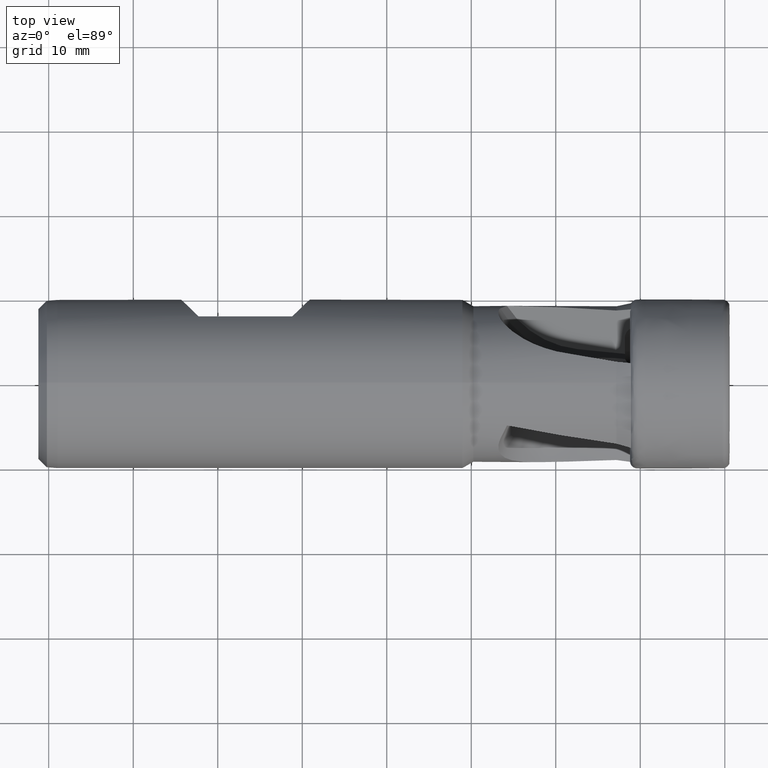
[diagram: clean part render]
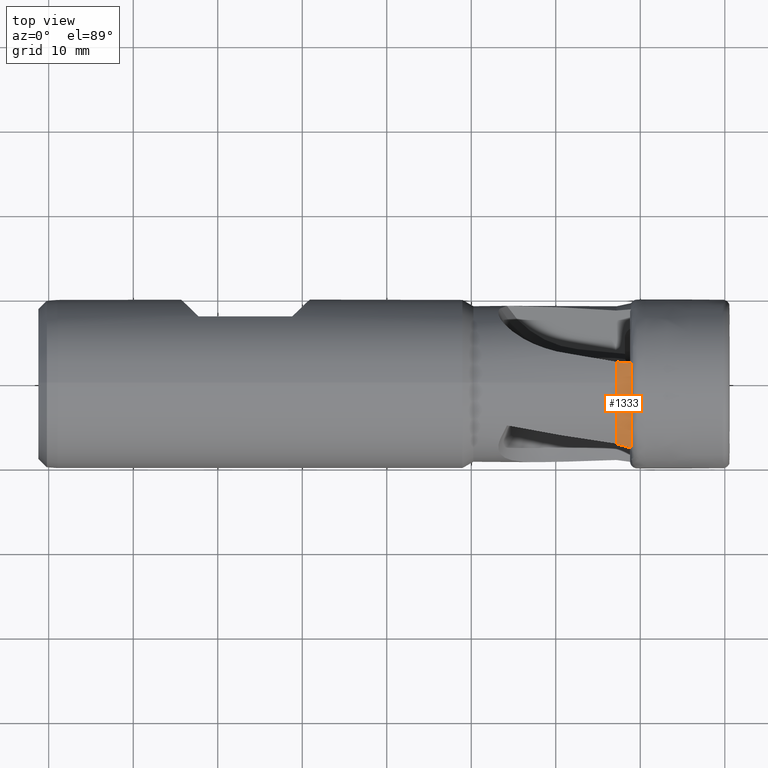
[diagram: same view with one face highlighted and labeled with its STEP entity id]
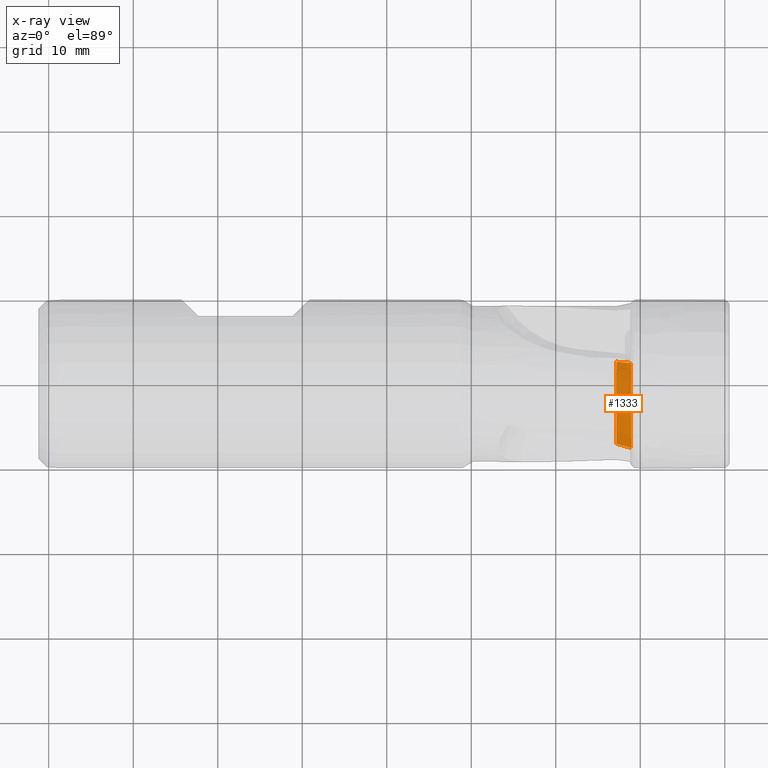
[diagram: x-ray of the same camera — body ghosted, the highlighted face saturated]
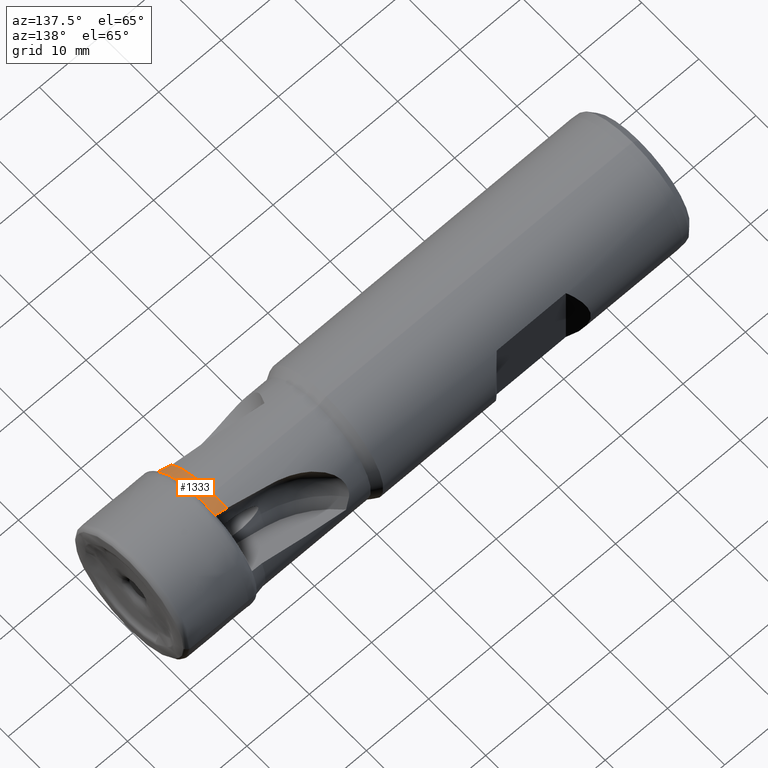
[diagram: same view with one face highlighted and labeled with its STEP entity id]
A machine part, top view. The second image highlights one B-rep face of the part: STEP entity #1333.
The next image is the same camera in x-ray: the body ghosted, the highlighted face saturated — about 0% of this face is hidden behind the body in this view.
A second angle (auxiliary view) of the same face is appended — the face is thin or edge-on in the first view.
In plain terms, the highlighted conical surface has half-angle 10 deg.
Its self-contained STEP definition (entity closure, byte-faithful):
#70 = CIRCLE ( 'NONE', #1669, 9.556150372036091400 ) ;
#119 = VERTEX_POINT ( 'NONE', #2236 ) ;
#124 = VERTEX_POINT ( 'NONE', #2232 ) ;
#135 = VERTEX_POINT ( 'NONE', #2222 ) ;
#143 = VERTEX_POINT ( 'NONE', #2216 ) ;
#365 = ORIENTED_EDGE ( 'NONE', *, *, #1216, .F. ) ;
#396 = ORIENTED_EDGE ( 'NONE', *, *, #3143, .F. ) ;
#412 = ORIENTED_EDGE ( 'NONE', *, *, #3144, .F. ) ;
#432 = ORIENTED_EDGE ( 'NONE', *, *, #1653, .T. ) ;
#437 = VERTEX_POINT ( 'NONE', #2053 ) ;
#449 = ORIENTED_EDGE ( 'NONE', *, *, #3131, .T. ) ;
#1216 = EDGE_CURVE ( 'NONE', #124, #119, #70, .T. ) ;
#1333 = ADVANCED_FACE ( 'NONE', ( #5056 ), #5053, .T. ) ;
#1653 = EDGE_CURVE ( 'NONE', #437, #143, #5007, .T. ) ;
#1669 = AXIS2_PLACEMENT_3D ( 'NONE', #4596, #4595, #4594 ) ;
#1749 = AXIS2_PLACEMENT_3D ( 'NONE', #4647, #4648, #4650 ) ;
#1773 = AXIS2_PLACEMENT_3D ( 'NONE', #2762, #2763, #2764 ) ;
#1785 = AXIS2_PLACEMENT_3D ( 'NONE', #3646, #3647, #3648 ) ;
#2053 = CARTESIAN_POINT ( 'NONE',  ( -12.83564090980890700, 2.466131658906649500, 8.915194593554289800 ) ) ;
#2216 = CARTESIAN_POINT ( 'NONE',  ( -12.83564090980896000, 1.132798289211301900E-015, 9.250000000000001800 ) ) ;
#2222 = CARTESIAN_POINT ( 'NONE',  ( -12.83564090980896000, -7.182680758268091400, 5.828515859531067100 ) ) ;
#2232 = CARTESIAN_POINT ( 'NONE',  ( -11.09937587078961100, 2.304786238743299800, 9.274048216757258000 ) ) ;
#2236 = CARTESIAN_POINT ( 'NONE',  ( -11.09937587081609700, -7.674786269914133800, 5.693651345485011300 ) ) ;
#2762 = CARTESIAN_POINT ( 'NONE',  ( -12.83564090980896000, 0.0000000000000000000, 0.0000000000000000000 ) ) ;
#2763 = DIRECTION ( 'NONE',  ( 1.000000000000000000, -0.0000000000000000000, -0.0000000000000000000 ) ) ;
#2764 = DIRECTION ( 'NONE',  ( 0.0000000000000000000, 0.0000000000000000000, -1.000000000000000000 ) ) ;
#3131 = EDGE_CURVE ( 'NONE', #143, #135, #3164, .T. ) ;
#3143 = EDGE_CURVE ( 'NONE', #437, #124, #3349, .T. ) ;
#3144 = EDGE_CURVE ( 'NONE', #119, #135, #3403, .T. ) ;
#3164 = CIRCLE ( 'NONE', #1785, 9.250000000000001800 ) ;
#3349 = B_SPLINE_CURVE_WITH_KNOTS ( 'NONE', 3,
 ( #3681, #3671, #3685, #3686 ),
 .UNSPECIFIED., .F., .F.,
 ( 4, 4 ),
 ( 1.734723475976806900E-018, 0.001780286648976586300 ),
 .UNSPECIFIED. ) ;
#3403 =( BOUNDED_CURVE ( )  B_SPLINE_CURVE ( 3, ( #3683, #3684, #3690, #3691 ),
 .UNSPECIFIED., .F., .F. ) 
 B_SPLINE_CURVE_WITH_KNOTS ( ( 4, 4 ),
 ( 2.601318118310635500, 2.623394745006822200 ),
 .UNSPECIFIED. ) 
 CURVE ( )  GEOMETRIC_REPRESENTATION_ITEM ( )  RATIONAL_B_SPLINE_CURVE ( ( 1.000000000000000000, 0.9999593856251982600, 0.9999593856251982600, 1.000000000000000000 ) ) 
 REPRESENTATION_ITEM ( '' )  );
#3646 = CARTESIAN_POINT ( 'NONE',  ( -12.83564090980896000, 0.0000000000000000000, 0.0000000000000000000 ) ) ;
#3647 = DIRECTION ( 'NONE',  ( 1.000000000000000000, -0.0000000000000000000, -0.0000000000000000000 ) ) ;
#3648 = DIRECTION ( 'NONE',  ( 0.0000000000000000000, 0.0000000000000000000, -1.000000000000000000 ) ) ;
#3671 = CARTESIAN_POINT ( 'NONE',  ( -12.25704713771456500, 2.412814289243917300, 9.035796370806387800 ) ) ;
#3681 = CARTESIAN_POINT ( 'NONE',  ( -12.83564090980890700, 2.466131658906649500, 8.915194593554289800 ) ) ;
#3683 = CARTESIAN_POINT ( 'NONE',  ( -11.09937587081609700, -7.674786269914133800, 5.693651345485011300 ) ) ;
#3684 = CARTESIAN_POINT ( 'NONE',  ( -11.68904185552065300, -7.510208668270236000, 5.740985912593834500 ) ) ;
#3685 = CARTESIAN_POINT ( 'NONE',  ( -11.67828509810735400, 2.359024596544543800, 9.155386551675938700 ) ) ;
#3686 = CARTESIAN_POINT ( 'NONE',  ( -11.09937587078961100, 2.304786238743299800, 9.274048216757258000 ) ) ;
#3690 = CARTESIAN_POINT ( 'NONE',  ( -12.26782037523661000, -7.346166835265526300, 5.785942576493933800 ) ) ;
#3691 = CARTESIAN_POINT ( 'NONE',  ( -12.83564090980896000, -7.182680758268091400, 5.828515859531067100 ) ) ;
#4047 = EDGE_LOOP ( 'NONE', ( #365, #396, #432, #449, #412 ) ) ;
#4594 = DIRECTION ( 'NONE',  ( -1.815295289882714900E-016, 1.000000000000000000, 0.0000000000000000000 ) ) ;
#4595 = DIRECTION ( 'NONE',  ( 1.000000000000000000, 1.218074880661910700E-016, -0.0000000000000000000 ) ) ;
#4596 = CARTESIAN_POINT ( 'NONE',  ( -11.09937587081143600, -2.642222849590000600E-015, 0.0000000000000000000 ) ) ;
#4647 = CARTESIAN_POINT ( 'NONE',  ( -10.00000000000000000, 0.0000000000000000000, 0.0000000000000000000 ) ) ;
#4648 = DIRECTION ( 'NONE',  ( 1.000000000000000000, -0.0000000000000000000, -0.0000000000000000000 ) ) ;
#4650 = DIRECTION ( 'NONE',  ( 0.0000000000000000000, 0.0000000000000000000, -1.000000000000000000 ) ) ;
#5007 = CIRCLE ( 'NONE', #1773, 9.250000000000001800 ) ;
#5053 = CONICAL_SURFACE ( 'NONE', #1749, 9.750000000000000000, 0.1745329251994262000 ) ;
#5056 = FACE_OUTER_BOUND ( 'NONE', #4047, .T. ) ;